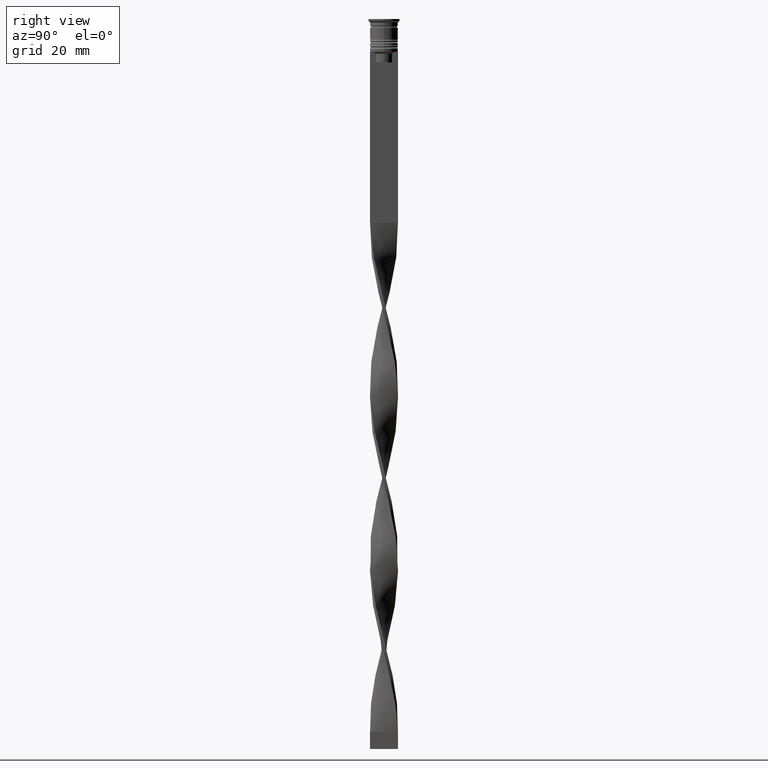
[diagram: clean part render]
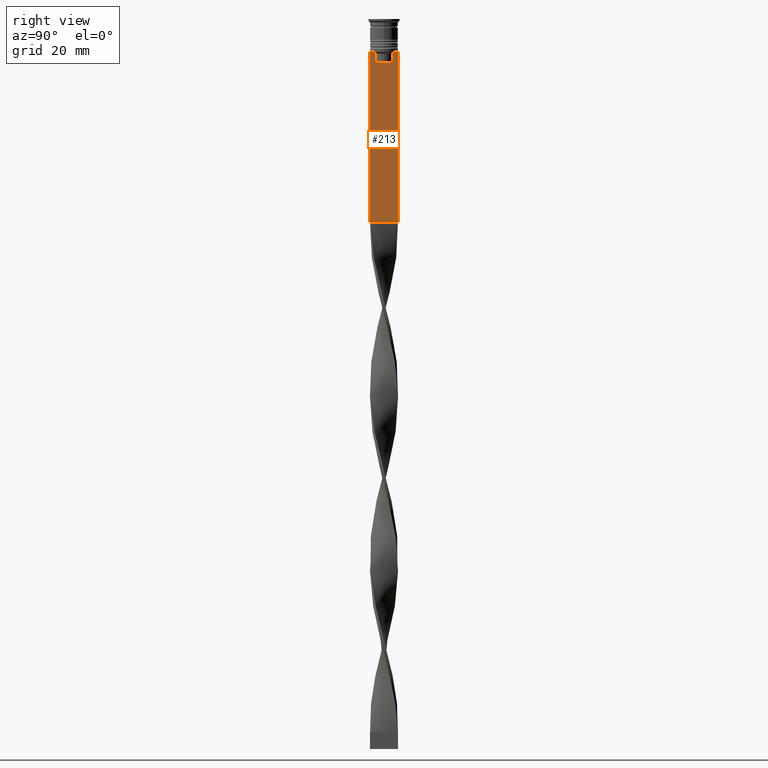
[diagram: same view with one face highlighted and labeled with its STEP entity id]
A machine part, right view. The second image highlights one B-rep face of the part: STEP entity #213.
In plain terms, the highlighted planar face has unit normal (-1, 0, 0).
Its self-contained STEP definition (entity closure, byte-faithful):
#21 = ORIENTED_EDGE ( 'NONE', *, *, #3158, .T. ) ;
#104 = ORIENTED_EDGE ( 'NONE', *, *, #3287, .T. ) ;
#126 = CARTESIAN_POINT ( 'NONE',  ( 0.5000000000000000000, -2.347338918861097135, -12.50000000000000000 ) ) ;
#148 = VECTOR ( 'NONE', #3152, 1000.000000000000000 ) ;
#157 = DIRECTION ( 'NONE',  ( 0.000000000000000000, 0.000000000000000000, 1.000000000000000000 ) ) ;
#159 = VERTEX_POINT ( 'NONE', #1909 ) ;
#213 = ADVANCED_FACE ( 'NONE', ( #467 ), #505, .F. ) ;
#215 = CARTESIAN_POINT ( 'NONE',  ( 0.5000000000000000000, 4.000000000000000000, -58.50000000000000000 ) ) ;
#250 = DIRECTION ( 'NONE',  ( -0.000000000000000000, -0.000000000000000000, 1.000000000000000000 ) ) ;
#275 = CARTESIAN_POINT ( 'NONE',  ( 0.5000000000000000000, -4.000000000000000000, -9.500000000000000000 ) ) ;
#360 = VERTEX_POINT ( 'NONE', #2402 ) ;
#410 = EDGE_CURVE ( 'NONE', #1664, #3029, #2741, .T. ) ;
#427 = DIRECTION ( 'NONE',  ( 0.000000000000000000, 0.000000000000000000, -1.000000000000000000 ) ) ;
#467 = FACE_OUTER_BOUND ( 'NONE', #1320, .T. ) ;
#486 = B_SPLINE_CURVE_WITH_KNOTS ( 'NONE', 3,
 ( #1304, #1068, #2889, #2261 ),
 .UNSPECIFIED., .F., .F.,
 ( 4, 4 ),
 ( 0.004956812174141191595, 0.005670477137898149653 ),
 .UNSPECIFIED. ) ;
#494 = VERTEX_POINT ( 'NONE', #126 ) ;
#505 = PLANE ( 'NONE',  #3173 ) ;
#512 = CARTESIAN_POINT ( 'NONE',  ( 0.5000000000000000000, -2.347338918861097135, -10.00000000000000000 ) ) ;
#568 = DIRECTION ( 'NONE',  ( 0.000000000000000000, 0.000000000000000000, -1.000000000000000000 ) ) ;
#621 = ORIENTED_EDGE ( 'NONE', *, *, #682, .T. ) ;
#630 = CARTESIAN_POINT ( 'NONE',  ( 0.5000000000000000000, -2.347338918861097135, 0.000000000000000000 ) ) ;
#682 = EDGE_CURVE ( 'NONE', #2967, #494, #3128, .T. ) ;
#788 = VECTOR ( 'NONE', #427, 1000.000000000000000 ) ;
#799 = CARTESIAN_POINT ( 'NONE',  ( 0.5000000000000000000, -2.517408374291112416, -9.833662228483172285 ) ) ;
#859 = VECTOR ( 'NONE', #1152, 1000.000000000000000 ) ;
#882 = CARTESIAN_POINT ( 'NONE',  ( 0.5000000000000000000, -4.000000000000000000, -9.500000000000000000 ) ) ;
#927 = LINE ( 'NONE', #2973, #2042 ) ;
#1046 = EDGE_CURVE ( 'NONE', #494, #1073, #3002, .T. ) ;
#1068 = CARTESIAN_POINT ( 'NONE',  ( 0.5000000000000000000, 2.687094542495898075, -9.666938847453439010 ) ) ;
#1073 = VERTEX_POINT ( 'NONE', #512 ) ;
#1117 = CARTESIAN_POINT ( 'NONE',  ( 0.5000000000000000000, -4.000000000000000000, -1.437742251701450202 ) ) ;
#1135 = CARTESIAN_POINT ( 'NONE',  ( 0.5000000000000000000, -4.000000000000000000, -9.500000000000000000 ) ) ;
#1152 = DIRECTION ( 'NONE',  ( 0.000000000000000000, 0.000000000000000000, -1.000000000000000000 ) ) ;
#1170 = DIRECTION ( 'NONE',  ( 0.000000000000000000, -1.000000000000000000, 0.000000000000000000 ) ) ;
#1177 = ORIENTED_EDGE ( 'NONE', *, *, #1778, .T. ) ;
#1225 = LINE ( 'NONE', #275, #2290 ) ;
#1304 = CARTESIAN_POINT ( 'NONE',  ( 0.5000000000000000000, 2.856571371417138572, -9.500000000000000000 ) ) ;
#1320 = EDGE_LOOP ( 'NONE', ( #21, #3935, #1177, #621, #2279, #3941, #2213, #1400, #1978, #2663, #3001, #104 ) ) ;
#1325 = CARTESIAN_POINT ( 'NONE',  ( 0.5000000000000000000, 2.399999999999996803, -12.50000000000000000 ) ) ;
#1387 = VERTEX_POINT ( 'NONE', #3912 ) ;
#1400 = ORIENTED_EDGE ( 'NONE', *, *, #1693, .T. ) ;
#1429 = EDGE_CURVE ( 'NONE', #1387, #360, #927, .T. ) ;
#1451 = CARTESIAN_POINT ( 'NONE',  ( 0.5000000000000000000, 2.347338918861097135, 0.000000000000000000 ) ) ;
#1493 = DIRECTION ( 'NONE',  ( 0.000000000000000000, -1.000000000000000000, 0.000000000000000000 ) ) ;
#1545 = LINE ( 'NONE', #882, #1789 ) ;
#1664 = VERTEX_POINT ( 'NONE', #3482 ) ;
#1682 = CARTESIAN_POINT ( 'NONE',  ( 0.5000000000000000000, -2.856571371417138572, -9.500000000000000000 ) ) ;
#1693 = EDGE_CURVE ( 'NONE', #2076, #1387, #2625, .T. ) ;
#1778 = EDGE_CURVE ( 'NONE', #1788, #2967, #2033, .T. ) ;
#1788 = VERTEX_POINT ( 'NONE', #2703 ) ;
#1789 = VECTOR ( 'NONE', #1170, 1000.000000000000000 ) ;
#1909 = CARTESIAN_POINT ( 'NONE',  ( 0.5000000000000000000, 3.867815921162741422, -9.500000000000000000 ) ) ;
#1948 = EDGE_CURVE ( 'NONE', #360, #3029, #3344, .T. ) ;
#1966 = CARTESIAN_POINT ( 'NONE',  ( 0.5000000000000000000, -2.347338918861097135, -10.00000000000000000 ) ) ;
#1978 = ORIENTED_EDGE ( 'NONE', *, *, #1429, .T. ) ;
#2030 = VECTOR ( 'NONE', #3745, 1000.000000000000000 ) ;
#2033 = LINE ( 'NONE', #1451, #859 ) ;
#2042 = VECTOR ( 'NONE', #568, 1000.000000000000000 ) ;
#2076 = VERTEX_POINT ( 'NONE', #3535 ) ;
#2095 = CARTESIAN_POINT ( 'NONE',  ( 0.5000000000000000000, -4.000000000000000000, -9.500000000000000000 ) ) ;
#2213 = ORIENTED_EDGE ( 'NONE', *, *, #2686, .T. ) ;
#2261 = CARTESIAN_POINT ( 'NONE',  ( 0.5000000000000000000, 2.347338918861097135, -10.00000000000000000 ) ) ;
#2279 = ORIENTED_EDGE ( 'NONE', *, *, #1046, .T. ) ;
#2290 = VECTOR ( 'NONE', #1493, 1000.000000000000000 ) ;
#2395 = EDGE_CURVE ( 'NONE', #1073, #3291, #3442, .T. ) ;
#2402 = CARTESIAN_POINT ( 'NONE',  ( 0.5000000000000000000, -4.000000000000000000, -58.50000000000000000 ) ) ;
#2467 = EDGE_CURVE ( 'NONE', #2806, #1788, #486, .T. ) ;
#2625 = LINE ( 'NONE', #1135, #3121 ) ;
#2638 = CARTESIAN_POINT ( 'NONE',  ( 0.5000000000000000000, 2.347338918861097135, -12.50000000000000000 ) ) ;
#2661 = VECTOR ( 'NONE', #3689, 1000.000000000000000 ) ;
#2663 = ORIENTED_EDGE ( 'NONE', *, *, #1948, .T. ) ;
#2684 = LINE ( 'NONE', #2095, #148 ) ;
#2686 = EDGE_CURVE ( 'NONE', #3291, #2076, #2684, .T. ) ;
#2703 = CARTESIAN_POINT ( 'NONE',  ( 0.5000000000000000000, 2.347338918861097135, -10.00000000000000000 ) ) ;
#2741 = LINE ( 'NONE', #3129, #788 ) ;
#2806 = VERTEX_POINT ( 'NONE', #3423 ) ;
#2889 = CARTESIAN_POINT ( 'NONE',  ( 0.5000000000000000000, 2.517407211010872281, -9.833663366238582171 ) ) ;
#2921 = DIRECTION ( 'NONE',  ( 0.000000000000000000, -1.000000000000000000, 0.000000000000000000 ) ) ;
#2967 = VERTEX_POINT ( 'NONE', #2638 ) ;
#2973 = CARTESIAN_POINT ( 'NONE',  ( 0.5000000000000000000, -4.000000000000000000, -1.437742251701450202 ) ) ;
#3001 = ORIENTED_EDGE ( 'NONE', *, *, #410, .F. ) ;
#3002 = LINE ( 'NONE', #630, #3305 ) ;
#3029 = VERTEX_POINT ( 'NONE', #215 ) ;
#3121 = VECTOR ( 'NONE', #2921, 1000.000000000000000 ) ;
#3128 = LINE ( 'NONE', #1325, #2030 ) ;
#3129 = CARTESIAN_POINT ( 'NONE',  ( 0.5000000000000000000, 4.000000000000000000, -1.437742251701450202 ) ) ;
#3152 = DIRECTION ( 'NONE',  ( 0.000000000000000000, -1.000000000000000000, 0.000000000000000000 ) ) ;
#3158 = EDGE_CURVE ( 'NONE', #159, #2806, #1545, .T. ) ;
#3173 = AXIS2_PLACEMENT_3D ( 'NONE', #1117, #3503, #157 ) ;
#3287 = EDGE_CURVE ( 'NONE', #1664, #159, #1225, .T. ) ;
#3291 = VERTEX_POINT ( 'NONE', #3908 ) ;
#3305 = VECTOR ( 'NONE', #250, 1000.000000000000000 ) ;
#3344 = LINE ( 'NONE', #3407, #2661 ) ;
#3407 = CARTESIAN_POINT ( 'NONE',  ( 0.5000000000000000000, -4.000000000000000000, -58.50000000000000000 ) ) ;
#3423 = CARTESIAN_POINT ( 'NONE',  ( 0.5000000000000000000, 2.856571371417138572, -9.500000000000000000 ) ) ;
#3442 = B_SPLINE_CURVE_WITH_KNOTS ( 'NONE', 3,
 ( #1966, #799, #3783, #1682 ),
 .UNSPECIFIED., .F., .F.,
 ( 4, 4 ),
 ( 0.01178336557230038467, 0.01249758354768160280 ),
 .UNSPECIFIED. ) ;
#3482 = CARTESIAN_POINT ( 'NONE',  ( 0.5000000000000000000, 4.000000000000000000, -9.500000000000000000 ) ) ;
#3503 = DIRECTION ( 'NONE',  ( -1.000000000000000000, 0.000000000000000000, 0.000000000000000000 ) ) ;
#3535 = CARTESIAN_POINT ( 'NONE',  ( 0.5000000000000000000, -3.867815921162741422, -9.500000000000000000 ) ) ;
#3689 = DIRECTION ( 'NONE',  ( 0.000000000000000000, 1.000000000000000000, 0.000000000000000000 ) ) ;
#3745 = DIRECTION ( 'NONE',  ( 0.000000000000000000, -1.000000000000000000, 0.000000000000000000 ) ) ;
#3783 = CARTESIAN_POINT ( 'NONE',  ( 0.5000000000000000000, -2.687095498514037839, -9.666937905752043037 ) ) ;
#3908 = CARTESIAN_POINT ( 'NONE',  ( 0.5000000000000000000, -2.856571371417138572, -9.500000000000000000 ) ) ;
#3912 = CARTESIAN_POINT ( 'NONE',  ( 0.5000000000000000000, -4.000000000000000000, -9.500000000000000000 ) ) ;
#3935 = ORIENTED_EDGE ( 'NONE', *, *, #2467, .T. ) ;
#3941 = ORIENTED_EDGE ( 'NONE', *, *, #2395, .T. ) ;